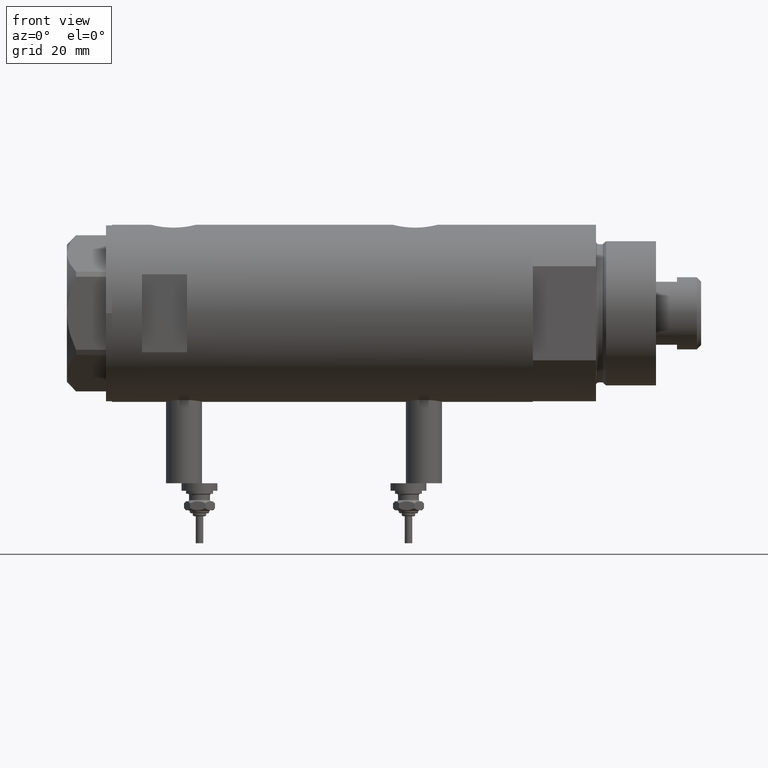
[diagram: clean part render]
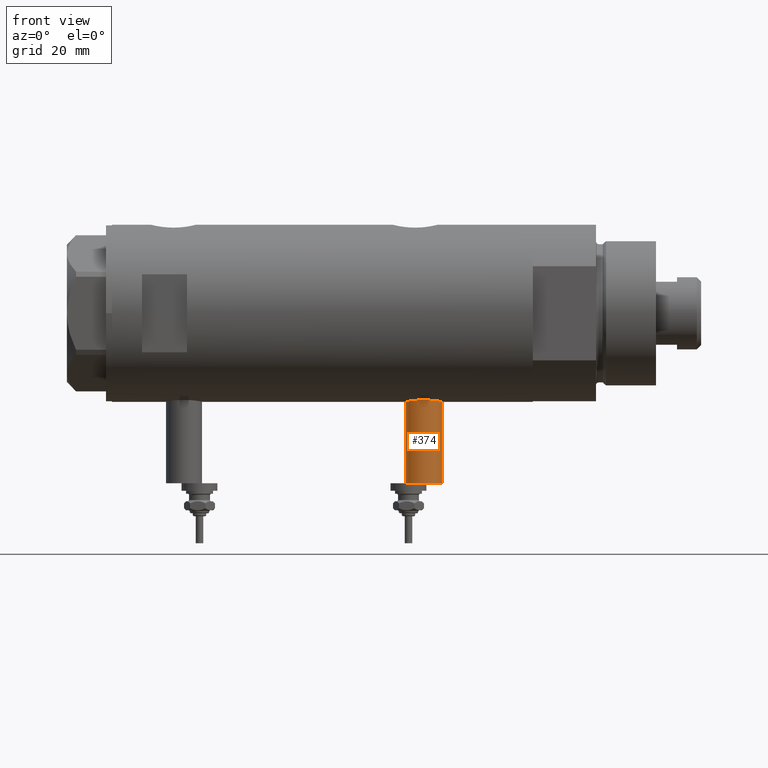
[diagram: same view with one face highlighted and labeled with its STEP entity id]
A machine part, front view. The second image highlights one B-rep face of the part: STEP entity #374.
In plain terms, the highlighted cylindrical surface (edge-blend (fillet) strip) has radius 6 mm, axis along (0, 0, 1).
Its self-contained STEP definition (entity closure, byte-faithful):
#138 = DIRECTION ( 'NONE',  ( 1.000000000000000000, -0.000000000000000000, -0.000000000000000000 ) ) ;
#202 = EDGE_CURVE ( 'NONE', #1076, #3008, #3347, .T. ) ;
#239 = EDGE_CURVE ( 'NONE', #5836, #1762, #3339, .T. ) ;
#374 = ADVANCED_FACE ( 'NONE', ( #5763 ), #3035, .T. ) ;
#384 = CIRCLE ( 'NONE', #3461, 6.000000000000001776 ) ;
#670 = AXIS2_PLACEMENT_3D ( 'NONE', #2474, #5571, #2507 ) ;
#947 = AXIS2_PLACEMENT_3D ( 'NONE', #4846, #5785, #1682 ) ;
#1076 = VERTEX_POINT ( 'NONE', #3489 ) ;
#1078 = ORIENTED_EDGE ( 'NONE', *, *, #5005, .T. ) ;
#1427 = VECTOR ( 'NONE', #138, 1000.000000000000000 ) ;
#1682 = DIRECTION ( 'NONE',  ( 0.000000000000000000, 0.000000000000000000, -1.000000000000000000 ) ) ;
#1762 = VERTEX_POINT ( 'NONE', #2668 ) ;
#2243 = EDGE_LOOP ( 'NONE', ( #5767, #5870, #2361, #1078 ) ) ;
#2308 = CARTESIAN_POINT ( 'NONE',  ( -28.30000000000000071, 0.000000000000000000, -39.80000000000000426 ) ) ;
#2361 = ORIENTED_EDGE ( 'NONE', *, *, #202, .T. ) ;
#2452 = CARTESIAN_POINT ( 'NONE',  ( -56.60000000000000142, 7.347880794884122694E-16, -27.79999999999999361 ) ) ;
#2474 = CARTESIAN_POINT ( 'NONE',  ( -28.30000000000000071, 0.000000000000000000, -33.79999999999999716 ) ) ;
#2507 = DIRECTION ( 'NONE',  ( 0.000000000000000000, 0.000000000000000000, 1.000000000000000000 ) ) ;
#2668 = CARTESIAN_POINT ( 'NONE',  ( -28.30000000000000071, 7.347880794884123680E-16, -27.79999999999999005 ) ) ;
#2800 = DIRECTION ( 'NONE',  ( -1.000000000000000000, 0.000000000000000000, 0.000000000000000000 ) ) ;
#3008 = VERTEX_POINT ( 'NONE', #2308 ) ;
#3035 = CYLINDRICAL_SURFACE ( 'NONE', #947, 6.000000000000005329 ) ;
#3339 = LINE ( 'NONE', #2452, #5818 ) ;
#3347 = LINE ( 'NONE', #4828, #1427 ) ;
#3461 = AXIS2_PLACEMENT_3D ( 'NONE', #5587, #2800, #4613 ) ;
#3489 = CARTESIAN_POINT ( 'NONE',  ( -56.60000000000000142, 0.000000000000000000, -39.80000000000000426 ) ) ;
#3556 = EDGE_CURVE ( 'NONE', #1076, #5836, #384, .T. ) ;
#4613 = DIRECTION ( 'NONE',  ( 0.000000000000000000, 0.000000000000000000, 1.000000000000000000 ) ) ;
#4698 = DIRECTION ( 'NONE',  ( 1.000000000000000000, -0.000000000000000000, -0.000000000000000000 ) ) ;
#4828 = CARTESIAN_POINT ( 'NONE',  ( -56.60000000000000142, 0.000000000000000000, -39.80000000000000426 ) ) ;
#4840 = CARTESIAN_POINT ( 'NONE',  ( -56.60000000000000142, 7.347880794884123680E-16, -27.79999999999999005 ) ) ;
#4846 = CARTESIAN_POINT ( 'NONE',  ( -56.60000000000000142, 0.000000000000000000, -33.79999999999999716 ) ) ;
#5005 = EDGE_CURVE ( 'NONE', #3008, #1762, #5170, .T. ) ;
#5170 = CIRCLE ( 'NONE', #670, 6.000000000000001776 ) ;
#5571 = DIRECTION ( 'NONE',  ( -1.000000000000000000, 0.000000000000000000, 0.000000000000000000 ) ) ;
#5587 = CARTESIAN_POINT ( 'NONE',  ( -56.60000000000000142, 0.000000000000000000, -33.79999999999999716 ) ) ;
#5763 = FACE_OUTER_BOUND ( 'NONE', #2243, .T. ) ;
#5767 = ORIENTED_EDGE ( 'NONE', *, *, #239, .F. ) ;
#5785 = DIRECTION ( 'NONE',  ( 1.000000000000000000, -0.000000000000000000, -0.000000000000000000 ) ) ;
#5818 = VECTOR ( 'NONE', #4698, 1000.000000000000000 ) ;
#5836 = VERTEX_POINT ( 'NONE', #4840 ) ;
#5870 = ORIENTED_EDGE ( 'NONE', *, *, #3556, .F. ) ;